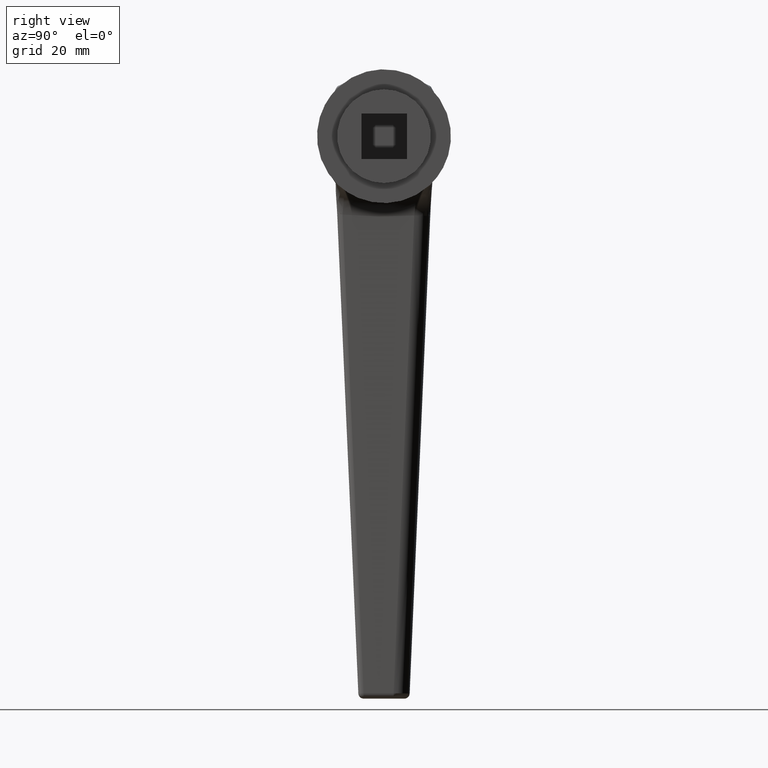
[diagram: clean part render]
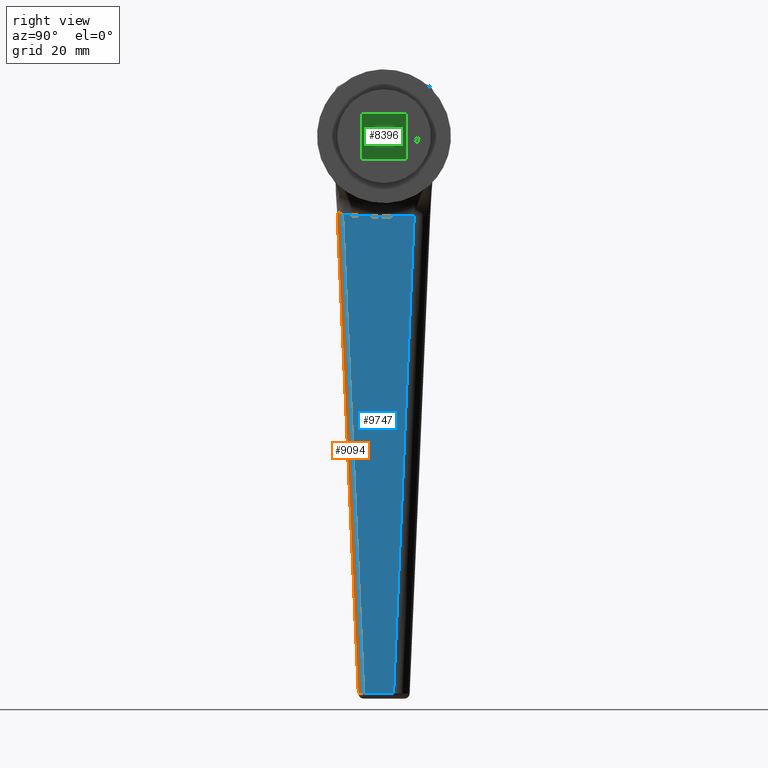
[diagram: same view with three faces highlighted in distinct colors, each labeled with its STEP entity id]
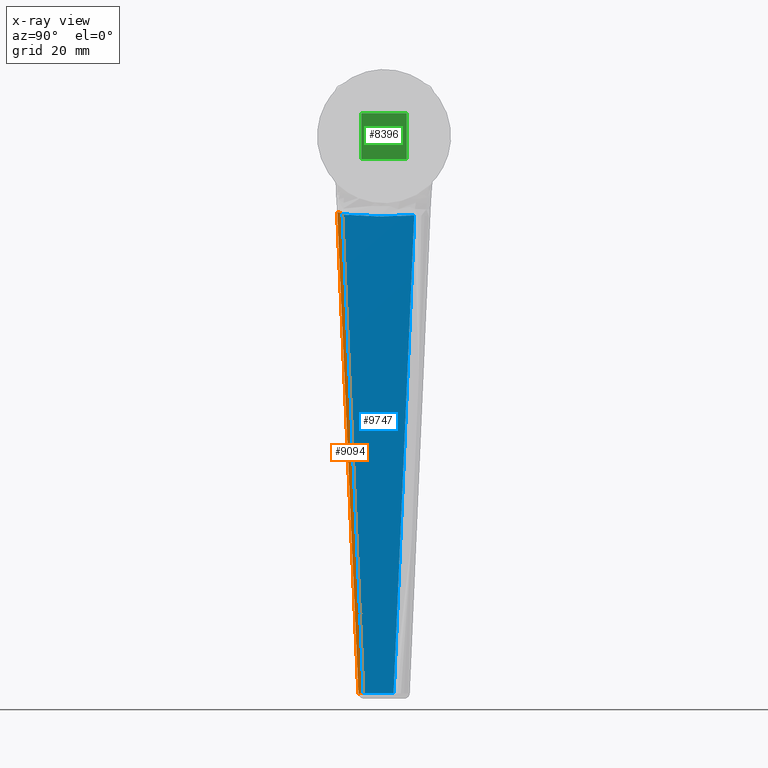
[diagram: x-ray of the same camera — body ghosted, the three highlighted faces saturated]
A machine part, right view with three faces highlighted in distinct colors.
The next image is the same camera in x-ray (body ghosted, the three faces saturated) — at least one of them is partly hidden behind the body in this view.
Their STEP definitions:

[orange] entity #9094 — the highlighted face is a freeform B-spline surface patch.
#301 = CARTESIAN_POINT ( 'NONE',  ( 104.0393095314311296, 4.792767543764870908, 45.00456983847492154 ) ) ;
#431 = CARTESIAN_POINT ( 'NONE',  ( 13.67346847054895420, 8.815725108575920288, 45.43442452196784842 ) ) ;
#604 = CARTESIAN_POINT ( 'NONE',  ( 32.10346883875244828, 7.961169392401591161, 46.37993116586378761 ) ) ;
#660 = B_SPLINE_CURVE_WITH_KNOTS ( 'NONE', 3,
 ( #12595, #12558, #6599, #2621, #6508, #10548, #6639, #2545, #7557, #11562, #7642, #5616, #2712, #10473, #604, #9644, #682, #3545, #7597 ),
 .UNSPECIFIED., .F., .F.,
 ( 4, 3, 3, 3, 3, 3, 4 ),
 ( 0.0009568996003744378691, 0.002000000000000866536, 0.01000000000011133650, 0.04200000000784981369, 0.06929913009263929946, 0.07480275382394699357, 0.09062600752097167700 ),
 .UNSPECIFIED. ) ;
#682 = CARTESIAN_POINT ( 'NONE',  ( 25.00148280301262105, 8.273766409410427514, 46.41704642784947765 ) ) ;
#703 = CARTESIAN_POINT ( 'NONE',  ( 14.20082872284467612, 8.495248029302022275, 45.76168920788763472 ) ) ;
#809 = CARTESIAN_POINT ( 'NONE',  ( 57.22756196546107077, 5.854020167395259655, 45.22724522883801512 ) ) ;
#834 = ORIENTED_EDGE ( 'NONE', *, *, #5351, .T. ) ;
#939 = CARTESIAN_POINT ( 'NONE',  ( 25.02555267855926502, 7.272184368715594260, 45.38042461993703824 ) ) ;
#1012 = CARTESIAN_POINT ( 'NONE',  ( 14.46298910025678097, 8.737498723324655714, 46.47217813502932415 ) ) ;
#1065 = AXIS2_PLACEMENT_3D ( 'NONE', #8202, #8403, #7207 ) ;
#1339 = VERTEX_POINT ( 'NONE', #2252 ) ;
#1658 = B_SPLINE_CURVE_WITH_KNOTS ( 'NONE', 3,
 ( #4756, #1849, #939, #6721, #10821, #8694, #809, #2879, #7694, #12763, #4837, #11689, #8825 ),
 .UNSPECIFIED., .F., .F.,
 ( 4, 3, 3, 3, 4 ),
 ( 0.005092003306828815287, 0.02069616433987492635, 0.04772836316392239930, 0.07476056199205985409, 0.09454195996922534762 ),
 .UNSPECIFIED. ) ;
#1849 = CARTESIAN_POINT ( 'NONE',  ( 19.82925781092006190, 7.500953937221889412, 45.40514249628768795 ) ) ;
#2252 = CARTESIAN_POINT ( 'NONE',  ( 104.0440416753740607, 4.792141209996905182, 46.00518519854863797 ) ) ;
#2294 = CARTESIAN_POINT ( 'NONE',  ( 43.57133125678667085, 7.484752301962614318, 45.29220555733022735 ) ) ;
#2545 = CARTESIAN_POINT ( 'NONE',  ( 84.35365746584578517, 5.660022912103128689, 46.10750279692577180 ) ) ;
#2621 = CARTESIAN_POINT ( 'NONE',  ( 103.0019673089344110, 4.838077777251348799, 46.01059724985100274 ) ) ;
#2712 = CARTESIAN_POINT ( 'NONE',  ( 35.76895174673230571, 7.799816783074149384, 46.36078208369829667 ) ) ;
#2741 = CARTESIAN_POINT ( 'NONE',  ( 14.33950953791095451, 8.151768232263874481, 45.51648728818853584 ) ) ;
#2756 = ORIENTED_EDGE ( 'NONE', *, *, #3666, .F. ) ;
#2879 = CARTESIAN_POINT ( 'NONE',  ( 66.22946337307438114, 5.457478094219275100, 45.18442474008942611 ) ) ;
#2992 = CARTESIAN_POINT ( 'NONE',  ( 14.29205937999534370, 8.705344655702514700, 46.14136978026512281 ) ) ;
#3327 = CARTESIAN_POINT ( 'NONE',  ( 43.75019901984010318, 6.447988486771226491, 45.29135471440575600 ) ) ;
#3545 = CARTESIAN_POINT ( 'NONE',  ( 19.73223683090320790, 8.505653692729653770, 46.44460269132988373 ) ) ;
#3666 = EDGE_CURVE ( 'NONE', #1339, #6556, #660, .T. ) ;
#3702 = CARTESIAN_POINT ( 'NONE',  ( 14.63296157459819469, 7.729692410407452030, 45.42986037914891284 ) ) ;
#3739 = EDGE_CURVE ( 'NONE', #11285, #11790, #1658, .T. ) ;
#4197 = CARTESIAN_POINT ( 'NONE',  ( 14.63296157459819469, 7.729692410407452030, 45.42986037914891284 ) ) ;
#4219 = CARTESIAN_POINT ( 'NONE',  ( 14.46298910025678097, 8.737498723324655714, 46.47217813502932415 ) ) ;
#4646 = CARTESIAN_POINT ( 'NONE',  ( 14.54754523406814926, 7.853440359675794014, 45.43026668991404193 ) ) ;
#4756 = CARTESIAN_POINT ( 'NONE',  ( 14.63296157459819469, 7.729692410407452030, 45.42986037914891284 ) ) ;
#4837 = CARTESIAN_POINT ( 'NONE',  ( 90.82058634399398045, 4.373841098007196670, 45.06744901942659709 ) ) ;
#5248 = CARTESIAN_POINT ( 'NONE',  ( 103.9952432266961608, 3.793111602381074920, 45.00477945426837323 ) ) ;
#5326 = CARTESIAN_POINT ( 'NONE',  ( 73.87274033827117137, 5.120985895917149477, 45.14806699293461634 ) ) ;
#5351 = EDGE_CURVE ( 'NONE', #11285, #6556, #6622, .T. ) ;
#5616 = CARTESIAN_POINT ( 'NONE',  ( 44.85973393575629586, 7.399633264308066671, 46.31329602240502652 ) ) ;
#5775 = FACE_OUTER_BOUND ( 'NONE', #10466, .T. ) ;
#5991 = CARTESIAN_POINT ( 'NONE',  ( 14.42717932282089421, 8.741808773189847059, 46.40625829221174570 ) ) ;
#6184 = CARTESIAN_POINT ( 'NONE',  ( 13.67650429408819690, 8.772103461184649120, 46.47629417186413292 ) ) ;
#6265 = CARTESIAN_POINT ( 'NONE',  ( 43.79907285238627423, 7.446745234902460098, 46.31864345764584101 ) ) ;
#6344 = CARTESIAN_POINT ( 'NONE',  ( 73.92158162536374277, 6.120008126359483214, 46.16162052812770611 ) ) ;
#6508 = CARTESIAN_POINT ( 'NONE',  ( 100.3379236289522680, 4.955512594073737453, 46.02443365681275367 ) ) ;
#6556 = VERTEX_POINT ( 'NONE', #4219 ) ;
#6599 = CARTESIAN_POINT ( 'NONE',  ( 103.3493254373334054, 4.822765739206770874, 46.00879315464711539 ) ) ;
#6622 = B_SPLINE_CURVE_WITH_KNOTS ( 'NONE', 3,
 ( #3702, #4646, #11589, #2741, #11628, #12579, #6624, #703, #11716, #9664, #11757, #2992, #10746, #6939, #5991, #1012 ),
 .UNSPECIFIED., .F., .F.,
 ( 4, 2, 2, 2, 2, 2, 2, 4 ),
 ( 1.736861395700139426E-14, 0.0004470254246861207802, 0.0006705381370204938378, 0.0008940508493548670037, 0.001117563561689240278, 0.001341076274023613336, 0.001564588986357986610, 0.001788101698692359668 ),
 .UNSPECIFIED. ) ;
#6624 = CARTESIAN_POINT ( 'NONE',  ( 14.22339923533395734, 8.388771007582612071, 45.66028587893796242 ) ) ;
#6639 = CARTESIAN_POINT ( 'NONE',  ( 95.00983515813304336, 5.190355398523462505, 46.05212028671012803 ) ) ;
#6721 = CARTESIAN_POINT ( 'NONE',  ( 30.22184621937341120, 7.043384667983618286, 45.35570674989786966 ) ) ;
#6939 = CARTESIAN_POINT ( 'NONE',  ( 14.39143995066501169, 8.739653936593926531, 46.34076880479330640 ) ) ;
#7194 = EDGE_CURVE ( 'NONE', #1339, #11790, #11546, .T. ) ;
#7207 = DIRECTION ( 'NONE',  ( 0.04403969918019556840, 0.9990297817863680319, 0.000000000000000000 ) ) ;
#7221 = CARTESIAN_POINT ( 'NONE',  ( 73.71790969717649489, 6.142665771626966809, 45.14880349657990877 ) ) ;
#7557 = CARTESIAN_POINT ( 'NONE',  ( 73.69747377908738883, 6.129545723037551852, 46.16295931802009278 ) ) ;
#7597 = CARTESIAN_POINT ( 'NONE',  ( 14.46298910025678097, 8.737498723324655714, 46.47217813502932415 ) ) ;
#7642 = CARTESIAN_POINT ( 'NONE',  ( 53.95051113860738212, 6.999329777114431828, 46.26586625693482802 ) ) ;
#7694 = CARTESIAN_POINT ( 'NONE',  ( 75.23136100800056170, 5.060850367017598828, 45.14160426928686576 ) ) ;
#8202 = CARTESIAN_POINT ( 'NONE',  ( 103.9999999999998579, 3.793111602381078473, 46.00476814075824450 ) ) ;
#8403 = DIRECTION ( 'NONE',  ( -0.9990185011736497644, 0.04403920190293128534, 0.004752158299907227774 ) ) ;
#8431 = CARTESIAN_POINT ( 'NONE',  ( 103.9952432266960898, 3.793111602381078029, 45.00477945426839455 ) ) ;
#8462 = ORIENTED_EDGE ( 'NONE', *, *, #7194, .T. ) ;
#8694 = CARTESIAN_POINT ( 'NONE',  ( 48.22566055923901018, 6.250562240509959011, 45.27006571757998898 ) ) ;
#8825 = CARTESIAN_POINT ( 'NONE',  ( 103.9952432266960898, 3.793111602381078029, 45.00477945426839455 ) ) ;
#9094 = ADVANCED_FACE ( 'NONE', ( #5775 ), #10491, .T. ) ;
#9644 = CARTESIAN_POINT ( 'NONE',  ( 30.27072707808729390, 8.041838321409386481, 46.38950914732656372 ) ) ;
#9664 = CARTESIAN_POINT ( 'NONE',  ( 14.22062445656599472, 8.625754576967704423, 45.94544562301737756 ) ) ;
#10126 = CARTESIAN_POINT ( 'NONE',  ( 13.62761174276418430, 7.773947039764837363, 45.43464265449421902 ) ) ;
#10466 = EDGE_LOOP ( 'NONE', ( #2756, #8462, #11911, #834 ) ) ;
#10473 = CARTESIAN_POINT ( 'NONE',  ( 33.93621039412582974, 7.880495526467615974, 46.37035548083783709 ) ) ;
#10491 =( BOUNDED_SURFACE ( )  B_SPLINE_SURFACE ( 3, 2, ( 
 ( #5248, #301, #11264 ),
 ( #5326, #7221, #6344 ),
 ( #3327, #2294, #6265 ),
 ( #10126, #431, #6184 ) ),
 .UNSPECIFIED., .F., .F., .T. ) 
 B_SPLINE_SURFACE_WITH_KNOTS ( ( 4, 4 ),
 ( 3, 3 ),
 ( 0.007250800841894273867, 0.09770709225254875507 ),
 ( 0.000000000000000000, 1.000000000000000000 ),
 .UNSPECIFIED. ) 
 GEOMETRIC_REPRESENTATION_ITEM ( )  RATIONAL_B_SPLINE_SURFACE ( (
 ( 1.000000000000000000, 0.7068852278348783935, 1.000000000000000000),
 ( 1.000000000000000000, 0.7022352715612842911, 1.000000000000000000),
 ( 1.000000000000000000, 0.6973321071937057525, 1.000000000000000000),
 ( 1.000000000000000000, 0.6921443839915905061, 1.000000000000000000) ) ) 
 REPRESENTATION_ITEM ( '' )  SURFACE ( )  );
#10548 = CARTESIAN_POINT ( 'NONE',  ( 97.67387958090104405, 5.072938520141936358, 46.03827465915779982 ) ) ;
#10746 = CARTESIAN_POINT ( 'NONE',  ( 14.32401540287440156, 8.721595791589182411, 46.20866273860008988 ) ) ;
#10821 = CARTESIAN_POINT ( 'NONE',  ( 39.22375537957073277, 6.647018661003404993, 45.31288622427157975 ) ) ;
#11264 = CARTESIAN_POINT ( 'NONE',  ( 104.0440416753740180, 4.792141209996905182, 46.00518519854862376 ) ) ;
#11285 = VERTEX_POINT ( 'NONE', #4197 ) ;
#11546 = CIRCLE ( 'NONE', #1065, 1.000000000000000000 ) ;
#11562 = CARTESIAN_POINT ( 'NONE',  ( 63.04128365194249284, 6.598913312299209188, 46.21849170173108945 ) ) ;
#11589 = CARTESIAN_POINT ( 'NONE',  ( 14.45744488962119156, 7.971460222160593467, 45.45047248094087422 ) ) ;
#11628 = CARTESIAN_POINT ( 'NONE',  ( 14.30399989762305779, 8.211332234471809599, 45.54437260193430603 ) ) ;
#11689 = CARTESIAN_POINT ( 'NONE',  ( 97.40791570724870496, 4.083497262195054489, 45.03611423246216106 ) ) ;
#11716 = CARTESIAN_POINT ( 'NONE',  ( 14.20033334167745309, 8.544248571644480705, 45.82026088038728773 ) ) ;
#11757 = CARTESIAN_POINT ( 'NONE',  ( 14.24058523488715977, 8.657514759873556898, 46.01023299458070426 ) ) ;
#11790 = VERTEX_POINT ( 'NONE', #8431 ) ;
#11911 = ORIENTED_EDGE ( 'NONE', *, *, #3739, .F. ) ;
#12558 = CARTESIAN_POINT ( 'NONE',  ( 103.6966835594750904, 4.807453550007201315, 46.00698913756846054 ) ) ;
#12579 = CARTESIAN_POINT ( 'NONE',  ( 14.24554267729258683, 8.330227549019413757, 45.61628447159398547 ) ) ;
#12595 = CARTESIAN_POINT ( 'NONE',  ( 104.0440416753740607, 4.792141209996905182, 46.00518519854863797 ) ) ;
#12763 = CARTESIAN_POINT ( 'NONE',  ( 84.23325506473163671, 4.664141452858471482, 45.09878381550515059 ) ) ;

[blue] entity #9747 — the highlighted planar face has unit normal (-1, 0, -0.0048).
#61 = LINE ( 'NONE', #11105, #9503 ) ;
#809 = CARTESIAN_POINT ( 'NONE',  ( 57.22756196546107077, 5.854020167395259655, 45.22724522883801512 ) ) ;
#939 = CARTESIAN_POINT ( 'NONE',  ( 25.02555267855926502, 7.272184368715594260, 45.38042461993703824 ) ) ;
#1206 = DIRECTION ( 'NONE',  ( 0.9999886864898707151, -3.300674527952580002E-20, -0.004756773303730991477 ) ) ;
#1658 = B_SPLINE_CURVE_WITH_KNOTS ( 'NONE', 3,
 ( #4756, #1849, #939, #6721, #10821, #8694, #809, #2879, #7694, #12763, #4837, #11689, #8825 ),
 .UNSPECIFIED., .F., .F.,
 ( 4, 3, 3, 3, 4 ),
 ( 0.005092003306828815287, 0.02069616433987492635, 0.04772836316392239930, 0.07476056199205985409, 0.09454195996922534762 ),
 .UNSPECIFIED. ) ;
#1837 = CARTESIAN_POINT ( 'NONE',  ( 103.9952432266962319, -1.790013429209257767, 45.00477945426837323 ) ) ;
#1849 = CARTESIAN_POINT ( 'NONE',  ( 19.82925781092006190, 7.500953937221889412, 45.40514249628768795 ) ) ;
#1873 = ORIENTED_EDGE ( 'NONE', *, *, #3739, .T. ) ;
#2056 = CARTESIAN_POINT ( 'NONE',  ( 14.78781269281390465, -5.638424506621201537, 45.42912377915020272 ) ) ;
#2512 = CARTESIAN_POINT ( 'NONE',  ( 14.80276740986177231, 5.505573418397789354, 45.42905264214656569 ) ) ;
#2671 = CARTESIAN_POINT ( 'NONE',  ( 14.98039394382482747, -1.181703962573616984, 45.42820770343254111 ) ) ;
#2879 = CARTESIAN_POINT ( 'NONE',  ( 66.22946337307438114, 5.457478094219275100, 45.18442474008942611 ) ) ;
#2948 = CARTESIAN_POINT ( 'NONE',  ( 103.5518214811156668, -1.809180475684344147, 45.00688873485341901 ) ) ;
#3507 = CARTESIAN_POINT ( 'NONE',  ( 14.63296157459819469, 7.729692410407452030, 45.42986037914891284 ) ) ;
#3546 = CARTESIAN_POINT ( 'NONE',  ( 14.91590516912555486, -3.411420051548645471, 45.42851446538499260 ) ) ;
#3739 = EDGE_CURVE ( 'NONE', #11285, #11790, #1658, .T. ) ;
#4141 = CARTESIAN_POINT ( 'NONE',  ( 63.60854449575384706, -3.534320081969755556, 45.19689199808475877 ) ) ;
#4197 = CARTESIAN_POINT ( 'NONE',  ( 14.63296157459819469, 7.729692410407452030, 45.42986037914891284 ) ) ;
#4397 = AXIS2_PLACEMENT_3D ( 'NONE', #5246, #9217, #1206 ) ;
#4756 = CARTESIAN_POINT ( 'NONE',  ( 14.63296157459819469, 7.729692410407452030, 45.42986037914891284 ) ) ;
#4837 = CARTESIAN_POINT ( 'NONE',  ( 90.82058634399398045, 4.373841098007196670, 45.06744901942659709 ) ) ;
#4958 = CARTESIAN_POINT ( 'NONE',  ( 83.13677859188253194, -2.691319094851468918, 45.10399956452779691 ) ) ;
#5228 = ORIENTED_EDGE ( 'NONE', *, *, #8639, .T. ) ;
#5246 = CARTESIAN_POINT ( 'NONE',  ( 0.2164282006443857265, 3.157088294686344075E-16, 45.49843733608058471 ) ) ;
#5501 = CARTESIAN_POINT ( 'NONE',  ( 14.86054851687228151, -4.525643637952882159, 45.42877778740972161 ) ) ;
#5997 = CARTESIAN_POINT ( 'NONE',  ( 73.37266154402594509, -3.112819588401643855, 45.15044578130528663 ) ) ;
#6721 = CARTESIAN_POINT ( 'NONE',  ( 30.22184621937341120, 7.043384667983618286, 45.35570674989786966 ) ) ;
#7412 = ORIENTED_EDGE ( 'NONE', *, *, #8014, .T. ) ;
#7473 = CARTESIAN_POINT ( 'NONE',  ( 14.98952780882605573, -0.06678113409990324434, 45.42816425521582602 ) ) ;
#7694 = CARTESIAN_POINT ( 'NONE',  ( 75.23136100800056170, 5.060850367017598828, 45.14160426928686576 ) ) ;
#8014 = EDGE_CURVE ( 'NONE', #11790, #9300, #61, .T. ) ;
#8251 = DIRECTION ( 'NONE',  ( -2.118522938825959438E-33, -1.000000000000000000, -6.938893903907222215E-18 ) ) ;
#8346 = EDGE_CURVE ( 'NONE', #9707, #11285, #8896, .T. ) ;
#8431 = CARTESIAN_POINT ( 'NONE',  ( 103.9952432266960898, 3.793111602381078029, 45.00477945426839455 ) ) ;
#8613 = CARTESIAN_POINT ( 'NONE',  ( 14.78781269281390465, -5.638424506621201537, 45.42912377915020272 ) ) ;
#8639 = EDGE_CURVE ( 'NONE', #9300, #9707, #10888, .T. ) ;
#8694 = CARTESIAN_POINT ( 'NONE',  ( 48.22566055923901018, 6.250562240509959011, 45.27006571757998898 ) ) ;
#8825 = CARTESIAN_POINT ( 'NONE',  ( 103.9952432266960898, 3.793111602381078029, 45.00477945426839455 ) ) ;
#8896 = B_SPLINE_CURVE_WITH_KNOTS ( 'NONE', 3,
 ( #8613, #5501, #3546, #2671, #7473, #11611, #12598, #2512, #9435, #3507 ),
 .UNSPECIFIED., .F., .F.,
 ( 4, 2, 2, 2, 4 ),
 ( 0.003148882064997797492, 0.006495098940142365364, 0.009841315815286933236, 0.01318753269043150197, 0.01653374956557606898 ),
 .UNSPECIFIED. ) ;
#8997 = CARTESIAN_POINT ( 'NONE',  ( 34.31613314021677752, -4.797426102258812719, 45.33623093483515731 ) ) ;
#9039 = FACE_OUTER_BOUND ( 'NONE', #10803, .T. ) ;
#9217 = DIRECTION ( 'NONE',  ( 0.004756773303730991477, 6.938815400660762030E-18, 0.9999886864898707151 ) ) ;
#9240 = ORIENTED_EDGE ( 'NONE', *, *, #8346, .T. ) ;
#9300 = VERTEX_POINT ( 'NONE', #12138 ) ;
#9435 = CARTESIAN_POINT ( 'NONE',  ( 14.72383197282171707, 6.617983389596762578, 45.42942812437422617 ) ) ;
#9503 = VECTOR ( 'NONE', #8251, 1000.000000000000000 ) ;
#9707 = VERTEX_POINT ( 'NONE', #11996 ) ;
#9747 = ADVANCED_FACE ( 'NONE', ( #9039 ), #9862, .F. ) ;
#9862 = PLANE ( 'NONE',  #4397 ) ;
#9896 = CARTESIAN_POINT ( 'NONE',  ( 102.6649779207940156, -1.847512968576347392, 45.01110729635247765 ) ) ;
#10753 = CARTESIAN_POINT ( 'NONE',  ( 103.1083997124994340, -1.828346989234491016, 45.00899801554803048 ) ) ;
#10803 = EDGE_LOOP ( 'NONE', ( #1873, #7412, #5228, #9240 ) ) ;
#10821 = CARTESIAN_POINT ( 'NONE',  ( 39.22375537957073277, 6.647018661003404993, 45.31288622427157975 ) ) ;
#10888 = B_SPLINE_CURVE_WITH_KNOTS ( 'NONE', 3,
 ( #1837, #2948, #10753, #9896, #10895, #4958, #5997, #4141, #11027, #11982, #8997, #11112, #2056 ),
 .UNSPECIFIED., .F., .F.,
 ( 4, 3, 3, 3, 4 ),
 ( 0.001005706389499069157, 0.002337228834934569621, 0.03165719158039615594, 0.06097715432792148033, 0.09029711707775739393 ),
 .UNSPECIFIED. ) ;
#10895 = CARTESIAN_POINT ( 'NONE',  ( 92.90088385450137309, -2.269545508850843607, 45.05755340381064400 ) ) ;
#11027 = CARTESIAN_POINT ( 'NONE',  ( 53.84441565471517066, -3.955547486844575467, 45.24333827096037908 ) ) ;
#11105 = CARTESIAN_POINT ( 'NONE',  ( 103.9952432266962035, -1.746581583774020174, 45.00477945426837323 ) ) ;
#11112 = CARTESIAN_POINT ( 'NONE',  ( 24.55197945836779638, -5.218077316750569850, 45.38267732587421932 ) ) ;
#11285 = VERTEX_POINT ( 'NONE', #4197 ) ;
#11611 = CARTESIAN_POINT ( 'NONE',  ( 14.95967811938417924, 2.163199406784487078, 45.42830624502808945 ) ) ;
#11689 = CARTESIAN_POINT ( 'NONE',  ( 97.40791570724870496, 4.083497262195054489, 45.03611423246216106 ) ) ;
#11790 = VERTEX_POINT ( 'NONE', #8431 ) ;
#11982 = CARTESIAN_POINT ( 'NONE',  ( 44.08027439769853828, -4.376486794541667891, 45.28978460289665975 ) ) ;
#11996 = CARTESIAN_POINT ( 'NONE',  ( 14.78781269281390465, -5.638424506621201537, 45.42912377915020272 ) ) ;
#12138 = CARTESIAN_POINT ( 'NONE',  ( 103.9952432266962319, -1.790013429209257767, 45.00477945426837323 ) ) ;
#12598 = CARTESIAN_POINT ( 'NONE',  ( 14.92071209815234489, 3.278408577229370735, 45.42849159965462036 ) ) ;
#12763 = CARTESIAN_POINT ( 'NONE',  ( 84.23325506473163671, 4.664141452858471482, 45.09878381550515059 ) ) ;

[green] entity #8396 — the highlighted planar face has unit normal (-1, 0, 0).
#410 = EDGE_CURVE ( 'NONE', #2175, #10667, #3637, .T. ) ;
#931 = EDGE_CURVE ( 'NONE', #10667, #4342, #7551, .T. ) ;
#1014 = VECTOR ( 'NONE', #12573, 1000.000000000000000 ) ;
#1191 = ORIENTED_EDGE ( 'NONE', *, *, #10453, .T. ) ;
#1270 = LINE ( 'NONE', #4478, #11495 ) ;
#1809 = CARTESIAN_POINT ( 'NONE',  ( -2.311115933264683024E-30, 3.330669073875466663E-16, 47.99999999999998579 ) ) ;
#2175 = VERTEX_POINT ( 'NONE', #8068 ) ;
#2221 = LINE ( 'NONE', #6118, #11832 ) ;
#2537 = FACE_OUTER_BOUND ( 'NONE', #3255, .T. ) ;
#3255 = EDGE_LOOP ( 'NONE', ( #4824, #6133, #3498, #1191 ) ) ;
#3498 = ORIENTED_EDGE ( 'NONE', *, *, #8708, .T. ) ;
#3552 = DIRECTION ( 'NONE',  ( 1.000000000000000000, 2.118522938825960465E-33, -4.930380657631325973E-32 ) ) ;
#3637 = LINE ( 'NONE', #5803, #1014 ) ;
#3696 = VECTOR ( 'NONE', #7452, 1000.000000000000000 ) ;
#3851 = PLANE ( 'NONE',  #7356 ) ;
#3954 = CARTESIAN_POINT ( 'NONE',  ( 4.250000000000000000, -4.250000000000000000, 47.99999999999998579 ) ) ;
#4342 = VERTEX_POINT ( 'NONE', #6866 ) ;
#4478 = CARTESIAN_POINT ( 'NONE',  ( -4.250000000000000000, 4.250000000000000000, 47.99999999999998579 ) ) ;
#4824 = ORIENTED_EDGE ( 'NONE', *, *, #410, .T. ) ;
#5762 = CARTESIAN_POINT ( 'NONE',  ( -4.250000000000000000, 4.250000000000000000, 47.99999999999998579 ) ) ;
#5803 = CARTESIAN_POINT ( 'NONE',  ( 4.250000000000000000, 4.250000000000000000, 47.99999999999998579 ) ) ;
#6118 = CARTESIAN_POINT ( 'NONE',  ( -4.250000000000000000, 4.250000000000000000, 47.99999999999998579 ) ) ;
#6133 = ORIENTED_EDGE ( 'NONE', *, *, #931, .T. ) ;
#6772 = DIRECTION ( 'NONE',  ( 1.000000000000000000, 2.118522938825960465E-33, -4.930380657631325973E-32 ) ) ;
#6866 = CARTESIAN_POINT ( 'NONE',  ( -4.250000000000000000, -4.250000000000000000, 47.99999999999998579 ) ) ;
#6986 = DIRECTION ( 'NONE',  ( 2.118522938825959438E-33, 1.000000000000000000, 6.938893903907222215E-18 ) ) ;
#7356 = AXIS2_PLACEMENT_3D ( 'NONE', #1809, #9732, #6772 ) ;
#7452 = DIRECTION ( 'NONE',  ( -1.000000000000000000, -2.118522938825960465E-33, 4.930380657631325973E-32 ) ) ;
#7551 = LINE ( 'NONE', #12422, #3696 ) ;
#7772 = VERTEX_POINT ( 'NONE', #5762 ) ;
#8068 = CARTESIAN_POINT ( 'NONE',  ( 4.250000000000000000, 4.250000000000000000, 47.99999999999998579 ) ) ;
#8396 = ADVANCED_FACE ( 'NONE', ( #2537 ), #3851, .F. ) ;
#8708 = EDGE_CURVE ( 'NONE', #4342, #7772, #2221, .T. ) ;
#9732 = DIRECTION ( 'NONE',  ( 4.930380657631325973E-32, 6.938893903907223755E-18, 1.000000000000000000 ) ) ;
#10453 = EDGE_CURVE ( 'NONE', #7772, #2175, #1270, .T. ) ;
#10667 = VERTEX_POINT ( 'NONE', #3954 ) ;
#11495 = VECTOR ( 'NONE', #3552, 1000.000000000000000 ) ;
#11832 = VECTOR ( 'NONE', #6986, 1000.000000000000000 ) ;
#12422 = CARTESIAN_POINT ( 'NONE',  ( -4.250000000000000000, -4.250000000000000000, 47.99999999999998579 ) ) ;
#12573 = DIRECTION ( 'NONE',  ( -2.118522938825959438E-33, -1.000000000000000000, -6.938893903907222215E-18 ) ) ;